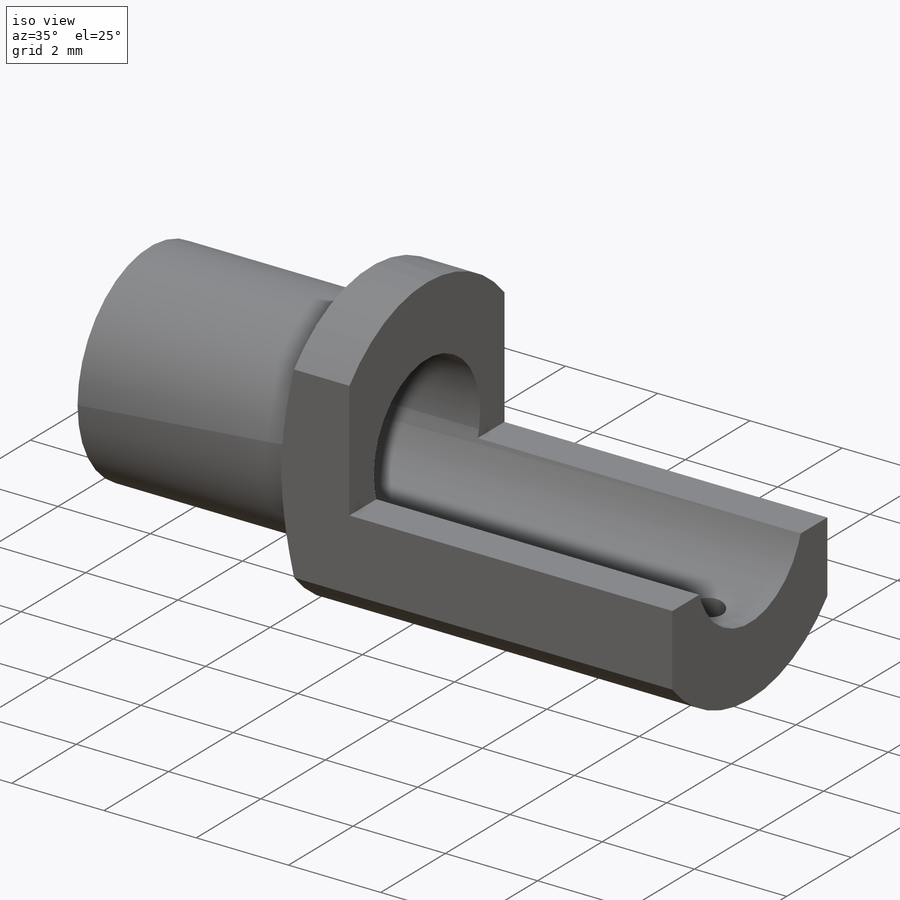
[diagram: iso view]
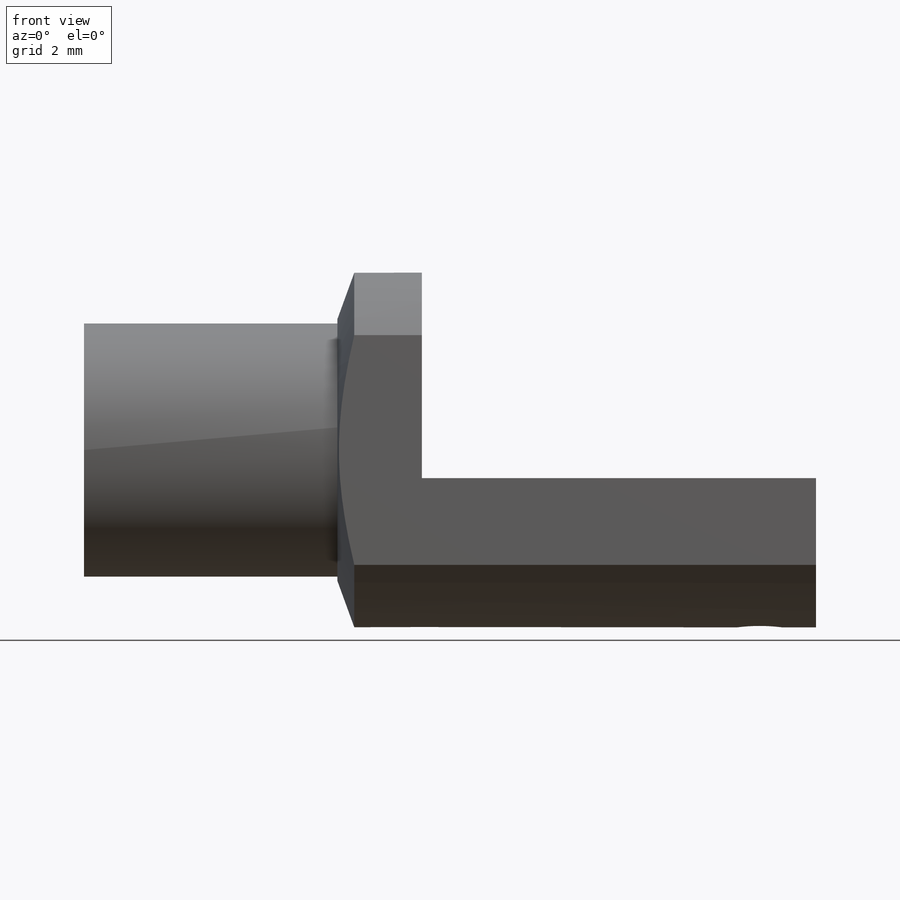
[diagram: front view]
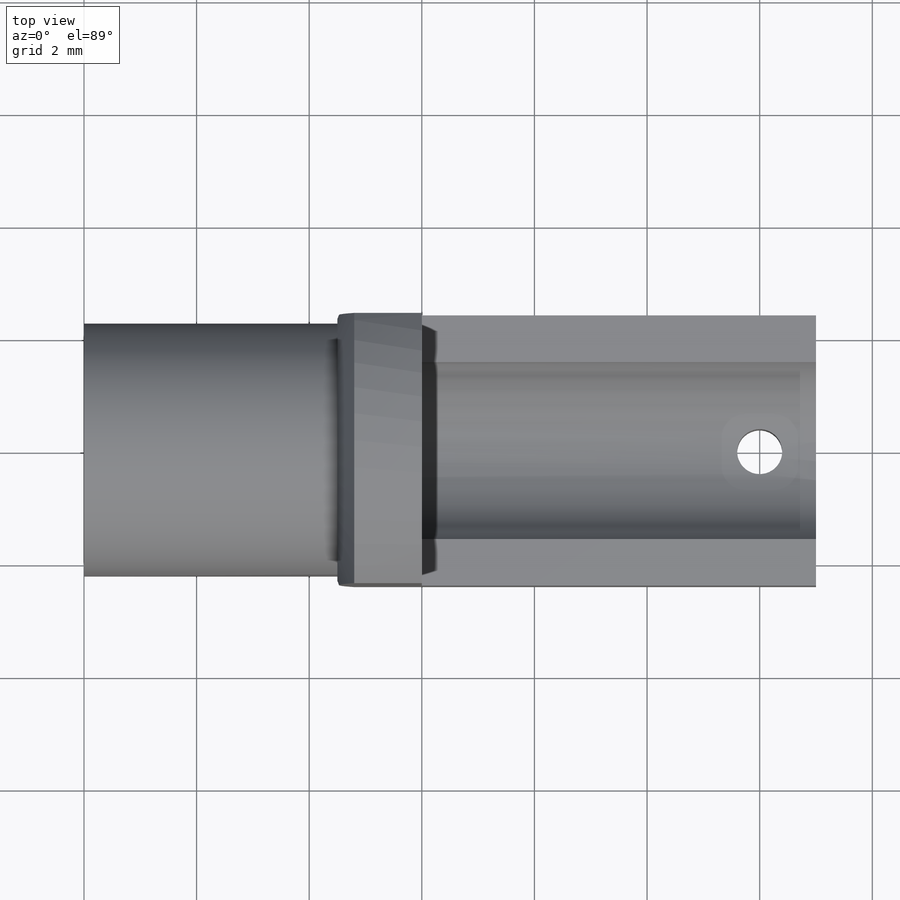
[diagram: top view]
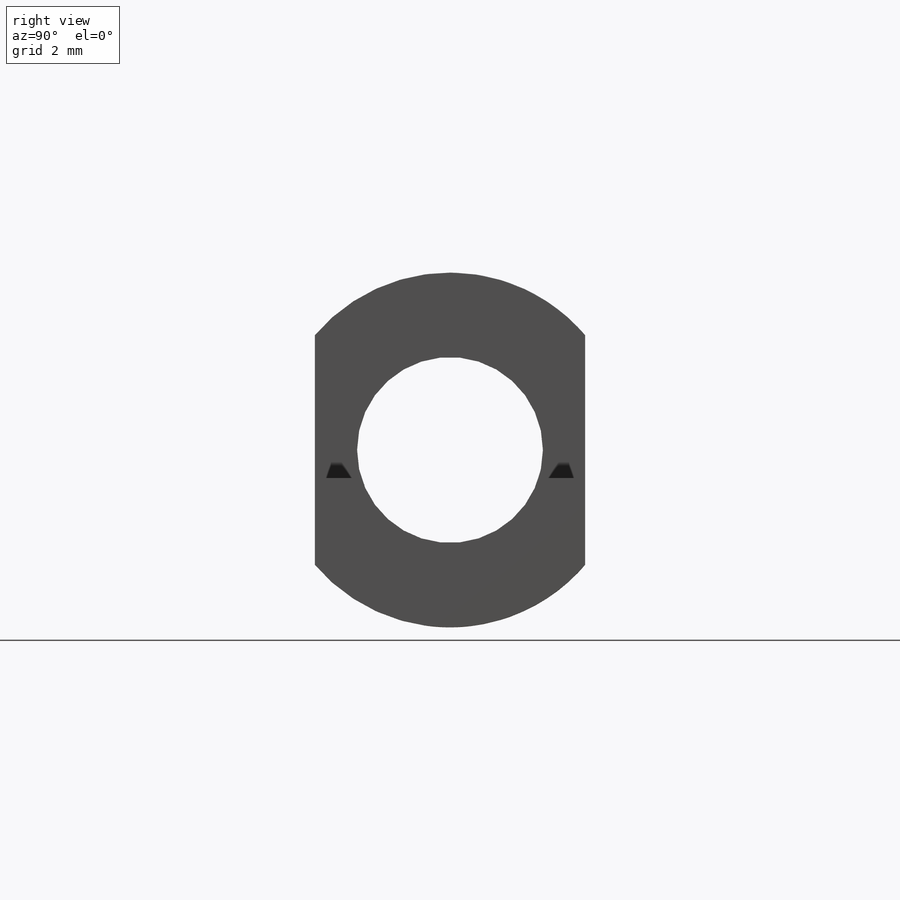
[diagram: right view]
SOLIDWORKS PART (.sldprt)
format: sldprt  version: not decoded by parser v0  size: 206,336 bytes
history: native  units: mm
features: sketch x4, plane x3, cut_extrude x3, material x1, revolve x1, chamfer x1 (+13 scaffold rows collapsed)
feature tree (26):
  scaffold x13  (default folders/planes/origin — collapsed)
  material  "ПТФЭ (общий)"
  plane  "Спереди"
  plane  "Сверху"
  plane  "Справа"
  sketch  "Эскиз1"  dims[D1=3.3mm D2=4.5mm D3=6.3mm D4=13.0mm D5=4.5mm]
  revolve  "Повернуть1"  Angle=360deg
  sketch  "Эскиз2"  dims[D1=0.5mm]
  cut_extrude  "Вырез-Вытянуть1"  Depth=1.5mm
  chamfer  "Фаска1"  Distance=0.3mm Angle=70deg
  sketch  "Эскиз3"  dims[c1.D1=~0.793133mm c1.D2=0.8mm c2.D1=6.0mm]
  cut_extrude  "Вырез-Вытянуть2"  Depth=10mm
  sketch  "Эскиз4"  dims[D1=2.4mm]
  cut_extrude  "Вырез-Вытянуть3"  [1 undecoded]
decode coverage: 8 of 9 modeling features carry decoded parameters
note: ~ marks probable driven/reference dimensions
note: 1 parameter value undecoded
note: suppression state not decoded; provenance and decode notes live in map.json
